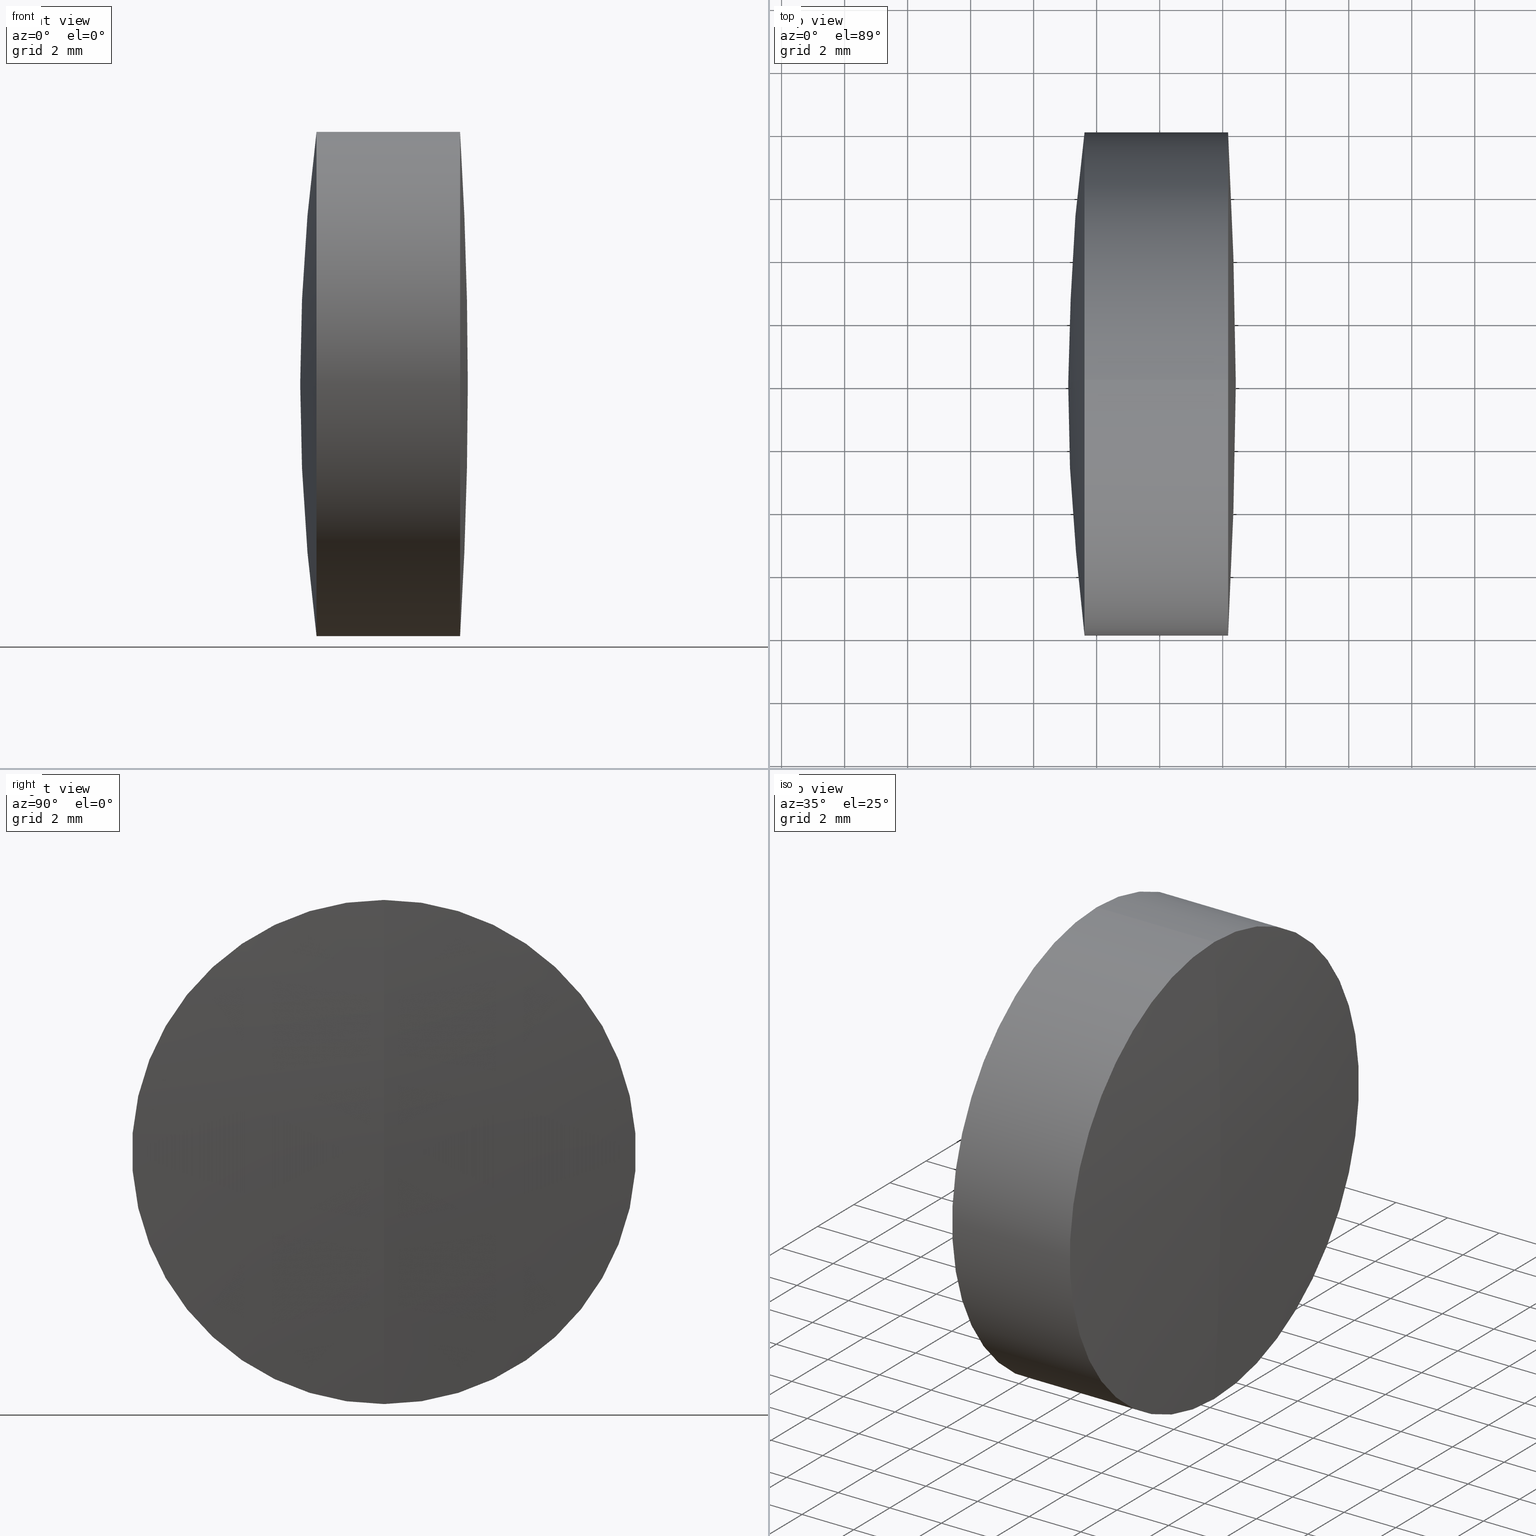
[diagram: canonical four-view strip — front | top / right | iso, engineering-drawing reading convention]
A machine part, canonical four-view strip (front | top / right | iso — engineering-drawing reading convention). The complete STEP part file that produces these views, byte-faithful:
ISO-10303-21;
HEADER;
FILE_DESCRIPTION (( 'STEP AP214' ),
    '1' );
FILE_NAME ('145035.STEP',
    '2019-05-11T06:52:00',
    ( 'user' ),
    ( '΢���й�' ),
    'SwSTEP 2.0',
    'SolidWorks 2016',
    '' );
FILE_SCHEMA (( 'AUTOMOTIVE_DESIGN' ));
ENDSEC;

DATA;
#1 = CYLINDRICAL_SURFACE ( 'NONE', #87, 8.000000000000000000 ) ;
#2 = EDGE_LOOP ( 'NONE', ( #178, #187, #67 ) ) ;
#3 = ORIENTED_EDGE ( 'NONE', *, *, #163, .T. ) ;
#4 = CARTESIAN_POINT ( 'NONE',  ( -92.12472938404633300, 0.0000000000000000000, 0.0000000000000000000 ) ) ;
#5 = EDGE_CURVE ( 'NONE', #121, #271, #224, .T. ) ;
#6 =( NAMED_UNIT ( * ) SI_UNIT ( $, .STERADIAN. ) SOLID_ANGLE_UNIT ( ) );
#7 = EDGE_LOOP ( 'NONE', ( #101, #62, #22 ) ) ;
#8 = ORIENTED_EDGE ( 'NONE', *, *, #275, .T. ) ;
#9 = CARTESIAN_POINT ( 'NONE',  ( 38.17090631032368700, 9.797174393178837500E-016, -8.000000000000007100 ) ) ;
#10 = CARTESIAN_POINT ( 'NONE',  ( 95.05027061595363600, 0.0000000000000000000, 3.037462302040094600E-017 ) ) ;
#11 = ADVANCED_FACE ( 'NONE', ( #230 ), #252, .T. ) ;
#12 = STYLED_ITEM ( 'NONE', ( #237 ), #108 ) ;
#13 = DIRECTION ( 'NONE',  ( 0.0000000000000000000, 1.000000000000000000, 0.0000000000000000000 ) ) ;
#14 = EDGE_LOOP ( 'NONE', ( #81, #241, #216, #170 ) ) ;
#15 = ORIENTED_EDGE ( 'NONE', *, *, #338, .T. ) ;
#16 = FILL_AREA_STYLE_COLOUR ( '', #285 ) ;
#17 = DIRECTION ( 'NONE',  ( -1.000000000000000000, -0.0000000000000000000, -0.0000000000000000000 ) ) ;
#18 = DIRECTION ( 'NONE',  ( 0.0000000000000000000, 0.0000000000000000000, -1.000000000000000000 ) ) ;
#19 = ADVANCED_FACE ( 'NONE', ( #206 ), #235, .F. ) ;
#20 = CARTESIAN_POINT ( 'NONE',  ( -3.994729384046351100, 0.0000000000000000000, 1.797088451517447400E-015 ) ) ;
#21 = DIRECTION ( 'NONE',  ( 0.0000000000000000000, 0.0000000000000000000, 1.000000000000000000 ) ) ;
#22 = ORIENTED_EDGE ( 'NONE', *, *, #232, .F. ) ;
#23 = ORIENTED_EDGE ( 'NONE', *, *, #144, .T. ) ;
#24 = STYLED_ITEM ( 'NONE', ( #47 ), #191 ) ;
#25 = PRESENTATION_LAYER_ASSIGNMENT (  '', '', ( #146 ) ) ;
#26 = DIRECTION ( 'NONE',  ( 0.0000000000000000000, 1.000000000000000000, -0.0000000000000000000 ) ) ;
#27 = VERTEX_POINT ( 'NONE', #344 ) ;
#28 = DIRECTION ( 'NONE',  ( -0.0000000000000000000, 1.000000000000000000, 1.224646799147353200E-016 ) ) ;
#29 = EDGE_CURVE ( 'NONE', #156, #332, #258, .T. ) ;
#30 = AXIS2_PLACEMENT_3D ( 'NONE', #112, #266, #114 ) ;
#31 = AXIS2_PLACEMENT_3D ( 'NONE', #280, #193, #289 ) ;
#32 = DIRECTION ( 'NONE',  ( -1.000000000000000000, -0.0000000000000000000, -0.0000000000000000000 ) ) ;
#33 = PRODUCT_DEFINITION ( 'δ֪', '', #288, #199 ) ;
#34 = ORIENTED_EDGE ( 'NONE', *, *, #310, .T. ) ;
#35 = SURFACE_STYLE_FILL_AREA ( #317 ) ;
#36 = VERTEX_POINT ( 'NONE', #119 ) ;
#37 = DIRECTION ( 'NONE',  ( 0.0000000000000000000, 0.0000000000000000000, 1.000000000000000000 ) ) ;
#38 = DIRECTION ( 'NONE',  ( 0.0000000000000000000, 0.0000000000000000000, 1.000000000000000000 ) ) ;
#39 = ORIENTED_EDGE ( 'NONE', *, *, #342, .T. ) ;
#40 = EDGE_CURVE ( 'NONE', #102, #36, #345, .T. ) ;
#41 = VERTEX_POINT ( 'NONE', #341 ) ;
#42 = AXIS2_PLACEMENT_3D ( 'NONE', #198, #279, #37 ) ;
#43 = FILL_AREA_STYLE ('',( #249 ) ) ;
#44 = EDGE_LOOP ( 'NONE', ( #165, #73, #312 ) ) ;
#45 = ADVANCED_FACE ( 'NONE', ( #231 ), #245, .T. ) ;
#46 = DIRECTION ( 'NONE',  ( 0.0000000000000000000, 0.0000000000000000000, 1.000000000000000000 ) ) ;
#47 = PRESENTATION_STYLE_ASSIGNMENT (( #307 ) ) ;
#48 = PRESENTATION_LAYER_ASSIGNMENT (  '', '', ( #24 ) ) ;
#49 = VECTOR ( 'NONE', #137, 1000.000000000000000 ) ;
#50 = ADVANCED_FACE ( 'NONE', ( #336 ), #315, .F. ) ;
#51 = EDGE_LOOP ( 'NONE', ( #184, #277, #15, #150 ) ) ;
#52 = DIRECTION ( 'NONE',  ( 0.0000000000000000000, 0.0000000000000000000, 1.000000000000000000 ) ) ;
#53 = DIRECTION ( 'NONE',  ( 0.0000000000000000000, 0.0000000000000000000, 1.000000000000000000 ) ) ;
#54 = CIRCLE ( 'NONE', #220, 130.5410000000000000 ) ;
#55 = DIRECTION ( 'NONE',  ( 0.0000000000000000000, 0.0000000000000000000, 1.000000000000000000 ) ) ;
#56 = ORIENTED_EDGE ( 'NONE', *, *, #5, .T. ) ;
#57 = AXIS2_PLACEMENT_3D ( 'NONE', #79, #17, #331 ) ;
#58 = ADVANCED_FACE ( 'NONE', ( #254 ), #117, .T. ) ;
#59 = LINE ( 'NONE', #98, #291 ) ;
#60 = EDGE_CURVE ( 'NONE', #86, #41, #113, .T. ) ;
#61 = ORIENTED_EDGE ( 'NONE', *, *, #228, .T. ) ;
#62 = ORIENTED_EDGE ( 'NONE', *, *, #40, .T. ) ;
#63 = MANIFOLD_SOLID_BREP ( '��ת1', #272 ) ;
#64 = VECTOR ( 'NONE', #324, 1000.000000000000000 ) ;
#65 = MECHANICAL_DESIGN_GEOMETRIC_PRESENTATION_REPRESENTATION (  '', ( #24 ), #244 ) ;
#66 = ORIENTED_EDGE ( 'NONE', *, *, #104, .T. ) ;
#67 = ORIENTED_EDGE ( 'NONE', *, *, #60, .T. ) ;
#68 = SURFACE_STYLE_USAGE ( .BOTH. , #281 ) ;
#69 = UNCERTAINTY_MEASURE_WITH_UNIT (LENGTH_MEASURE( 1.000000000000000100E-005 ), #70, 'distance_accuracy_value', 'NONE');
#70 =( LENGTH_UNIT ( ) NAMED_UNIT ( * ) SI_UNIT ( .MILLI., .METRE. ) );
#71 = FACE_OUTER_BOUND ( 'NONE', #92, .T. ) ;
#72 = CARTESIAN_POINT ( 'NONE',  ( -9.702612178336682500, 0.0000000000000000000, 0.0000000000000000000 ) ) ;
#73 = ORIENTED_EDGE ( 'NONE', *, *, #139, .T. ) ;
#74 = EDGE_LOOP ( 'NONE', ( #240, #56, #120 ) ) ;
#75 = CARTESIAN_POINT ( 'NONE',  ( 35.61649277584162100, 0.0000000000000000000, 8.000000000000000000 ) ) ;
#76 = DIRECTION ( 'NONE',  ( 0.0000000000000000000, -1.000000000000000000, 0.0000000000000000000 ) ) ;
#77 = CIRCLE ( 'NONE', #229, 40.41100000000000100 ) ;
#78 = CIRCLE ( 'NONE', #322, 40.41100000000000100 ) ;
#79 = CARTESIAN_POINT ( 'NONE',  ( -0.5519199926577972300, 0.0000000000000000000, 0.0000000000000000000 ) ) ;
#80 = CARTESIAN_POINT ( 'NONE',  ( -0.5519199926577972300, 0.0000000000000000000, 8.000000000000010700 ) ) ;
#81 = ORIENTED_EDGE ( 'NONE', *, *, #275, .F. ) ;
#82 = EDGE_LOOP ( 'NONE', ( #97, #34, #186 ) ) ;
#83 = AXIS2_PLACEMENT_3D ( 'NONE', #209, #185, #142 ) ;
#84 = APPLICATION_PROTOCOL_DEFINITION ( 'draft international standard', 'automotive_design', 1998, #111 ) ;
#85 = DIRECTION ( 'NONE',  ( -1.000000000000000000, -0.0000000000000000000, -0.0000000000000000000 ) ) ;
#86 = VERTEX_POINT ( 'NONE', #174 ) ;
#87 = AXIS2_PLACEMENT_3D ( 'NONE', #239, #243, #100 ) ;
#88 = AXIS2_PLACEMENT_3D ( 'NONE', #10, #286, #293 ) ;
#89 = DIRECTION ( 'NONE',  ( 0.0000000000000000000, -1.000000000000000000, 0.0000000000000000000 ) ) ;
#90 = CIRCLE ( 'NONE', #42, 8.000000000000000000 ) ;
#91 = VERTEX_POINT ( 'NONE', #329 ) ;
#92 = EDGE_LOOP ( 'NONE', ( #109, #164, #141 ) ) ;
#93 = CARTESIAN_POINT ( 'NONE',  ( 33.61495409524220400, -9.797174393178819700E-016, 7.999999999999992900 ) ) ;
#94 = AXIS2_PLACEMENT_3D ( 'NONE', #304, #327, #179 ) ;
#95 = ORIENTED_EDGE ( 'NONE', *, *, #310, .F. ) ;
#96 = DIRECTION ( 'NONE',  ( 0.0000000000000000000, 1.224646799147353200E-016, -1.000000000000000000 ) ) ;
#97 = ORIENTED_EDGE ( 'NONE', *, *, #342, .F. ) ;
#98 = CARTESIAN_POINT ( 'NONE',  ( -9.702612178336682500, 9.797174393178825700E-016, -8.000000000000000000 ) ) ;
#99 = MECHANICAL_DESIGN_GEOMETRIC_PRESENTATION_REPRESENTATION (  '', ( #12 ), #343 ) ;
#100 = DIRECTION ( 'NONE',  ( 0.0000000000000000000, 0.0000000000000000000, 1.000000000000000000 ) ) ;
#101 = ORIENTED_EDGE ( 'NONE', *, *, #257, .T. ) ;
#102 = VERTEX_POINT ( 'NONE', #93 ) ;
#103 = DIRECTION ( 'NONE',  ( 0.0000000000000000000, 0.0000000000000000000, 1.000000000000000000 ) ) ;
#104 = EDGE_CURVE ( 'NONE', #247, #271, #130, .T. ) ;
#105 = SURFACE_STYLE_FILL_AREA ( #256 ) ;
#106 = DIRECTION ( 'NONE',  ( 0.0000000000000000000, 0.0000000000000000000, -1.000000000000000000 ) ) ;
#107 = CARTESIAN_POINT ( 'NONE',  ( 35.61649277584162100, 0.0000000000000000000, 0.0000000000000000000 ) ) ;
#108 = MANIFOLD_SOLID_BREP ( '��ת3', #325 ) ;
#109 = ORIENTED_EDGE ( 'NONE', *, *, #5, .F. ) ;
#110 =( LENGTH_UNIT ( ) NAMED_UNIT ( * ) SI_UNIT ( .MILLI., .METRE. ) );
#111 = APPLICATION_CONTEXT ( 'automotive_design' ) ;
#112 = CARTESIAN_POINT ( 'NONE',  ( -3.994729384046351100, 0.0000000000000000000, 1.797088451517447400E-015 ) ) ;
#113 = CIRCLE ( 'NONE', #115, 8.000000000000012400 ) ;
#114 = DIRECTION ( 'NONE',  ( 0.0000000000000000000, 0.0000000000000000000, 1.000000000000000000 ) ) ;
#115 = AXIS2_PLACEMENT_3D ( 'NONE', #127, #32, #55 ) ;
#116 =( NAMED_UNIT ( * ) PLANE_ANGLE_UNIT ( ) SI_UNIT ( $, .RADIAN. ) );
#117 = SPHERICAL_SURFACE ( 'NONE', #169, 61.95399999999999400 ) ;
#118 = EDGE_CURVE ( 'NONE', #271, #247, #323, .T. ) ;
#119 = CARTESIAN_POINT ( 'NONE',  ( 33.09627061595364900, 0.0000000000000000000, -3.763213766698355200E-015 ) ) ;
#120 = ORIENTED_EDGE ( 'NONE', *, *, #104, .F. ) ;
#121 = VERTEX_POINT ( 'NONE', #180 ) ;
#122 = CARTESIAN_POINT ( 'NONE',  ( 35.61649277584162100, 0.0000000000000000000, 0.0000000000000000000 ) ) ;
#123 = EDGE_LOOP ( 'NONE', ( #296, #195, #61 ) ) ;
#124 = AXIS2_PLACEMENT_3D ( 'NONE', #203, #334, #21 ) ;
#125 = LINE ( 'NONE', #176, #49 ) ;
#126 = AXIS2_PLACEMENT_3D ( 'NONE', #313, #255, #53 ) ;
#127 = CARTESIAN_POINT ( 'NONE',  ( 35.61649277584162100, 0.0000000000000000000, 0.0000000000000000000 ) ) ;
#128 = DIRECTION ( 'NONE',  ( 0.0000000000000000000, 0.0000000000000000000, 1.000000000000000000 ) ) ;
#129 = AXIS2_PLACEMENT_3D ( 'NONE', #4, #13, #128 ) ;
#130 = CIRCLE ( 'NONE', #160, 8.000000000000007100 ) ;
#131 = SURFACE_STYLE_USAGE ( .BOTH. , #306 ) ;
#132 =( NAMED_UNIT ( * ) PLANE_ANGLE_UNIT ( ) SI_UNIT ( $, .RADIAN. ) );
#133 = LINE ( 'NONE', #253, #189 ) ;
#134 = DIRECTION ( 'NONE',  ( 0.0000000000000000000, -1.224646799147353200E-016, 1.000000000000000000 ) ) ;
#135 = EDGE_LOOP ( 'NONE', ( #95, #39, #173 ) ) ;
#136 = DIRECTION ( 'NONE',  ( -0.0000000000000000000, 1.000000000000000000, 1.224646799147353200E-016 ) ) ;
#137 = DIRECTION ( 'NONE',  ( -1.000000000000000000, -0.0000000000000000000, -0.0000000000000000000 ) ) ;
#138 = ADVANCED_FACE ( 'NONE', ( #238 ), #1, .T. ) ;
#139 = EDGE_CURVE ( 'NONE', #102, #223, #90, .T. ) ;
#140 = FACE_OUTER_BOUND ( 'NONE', #14, .T. ) ;
#141 = ORIENTED_EDGE ( 'NONE', *, *, #118, .F. ) ;
#142 = DIRECTION ( 'NONE',  ( 0.0000000000000000000, 0.0000000000000000000, 1.000000000000000000 ) ) ;
#143 = CIRCLE ( 'NONE', #259, 61.95399999999999400 ) ;
#144 = EDGE_CURVE ( 'NONE', #156, #223, #59, .T. ) ;
#145 = UNCERTAINTY_MEASURE_WITH_UNIT (LENGTH_MEASURE( 1.000000000000000100E-005 ), #110, 'distance_accuracy_value', 'NONE');
#146 = STYLED_ITEM ( 'NONE', ( #219 ), #63 ) ;
#147 = CIRCLE ( 'NONE', #126, 8.000000000000000000 ) ;
#148 = CYLINDRICAL_SURFACE ( 'NONE', #287, 8.000000000000010700 ) ;
#149 = FACE_OUTER_BOUND ( 'NONE', #74, .T. ) ;
#150 = ORIENTED_EDGE ( 'NONE', *, *, #257, .F. ) ;
#151 = EDGE_LOOP ( 'NONE', ( #66, #8, #215, #201 ) ) ;
#152 = AXIS2_PLACEMENT_3D ( 'NONE', #155, #299, #318 ) ;
#153 =( NAMED_UNIT ( * ) SI_UNIT ( $, .STERADIAN. ) SOLID_ANGLE_UNIT ( ) );
#154 = SURFACE_STYLE_FILL_AREA ( #43 ) ;
#155 = CARTESIAN_POINT ( 'NONE',  ( 38.17090631032368700, 0.0000000000000000000, 0.0000000000000000000 ) ) ;
#156 = VERTEX_POINT ( 'NONE', #346 ) ;
#157 = CARTESIAN_POINT ( 'NONE',  ( 38.17090631032368700, 0.0000000000000000000, 8.000000000000007100 ) ) ;
#158 = DIRECTION ( 'NONE',  ( 0.0000000000000000000, 0.0000000000000000000, 1.000000000000000000 ) ) ;
#159 = SPHERICAL_SURFACE ( 'NONE', #129, 130.5410000000000000 ) ;
#160 = AXIS2_PLACEMENT_3D ( 'NONE', #260, #242, #38 ) ;
#161 = DIRECTION ( 'NONE',  ( -0.0000000000000000000, -1.000000000000000000, -0.0000000000000000000 ) ) ;
#162 = DIRECTION ( 'NONE',  ( -1.000000000000000000, -0.0000000000000000000, -0.0000000000000000000 ) ) ;
#163 = EDGE_CURVE ( 'NONE', #332, #156, #147, .T. ) ;
#164 = ORIENTED_EDGE ( 'NONE', *, *, #282, .T. ) ;
#165 = ORIENTED_EDGE ( 'NONE', *, *, #40, .F. ) ;
#166 = PRODUCT_CONTEXT ( 'NONE', #111, 'mechanical' ) ;
#167 = PRODUCT_DEFINITION_SHAPE ( 'NONE', 'NONE',  #33 ) ;
#168 = DIRECTION ( 'NONE',  ( 0.0000000000000000000, 1.000000000000000000, 0.0000000000000000000 ) ) ;
#169 = AXIS2_PLACEMENT_3D ( 'NONE', #234, #161, #106 ) ;
#170 = ORIENTED_EDGE ( 'NONE', *, *, #228, .F. ) ;
#171 = ADVANCED_FACE ( 'NONE', ( #149 ), #159, .T. ) ;
#172 =( LENGTH_UNIT ( ) NAMED_UNIT ( * ) SI_UNIT ( .MILLI., .METRE. ) );
#173 = ORIENTED_EDGE ( 'NONE', *, *, #29, .F. ) ;
#174 = CARTESIAN_POINT ( 'NONE',  ( 35.61649277584162100, 0.0000000000000000000, 8.000000000000014200 ) ) ;
#175 = DIRECTION ( 'NONE',  ( 0.0000000000000000000, -1.224646799147353200E-016, 1.000000000000000000 ) ) ;
#176 = CARTESIAN_POINT ( 'NONE',  ( -0.5519199926577972300, 9.797174393178839500E-016, -8.000000000000010700 ) ) ;
#177 = DIRECTION ( 'NONE',  ( 0.0000000000000000000, 0.0000000000000000000, 1.000000000000000000 ) ) ;
#178 = ORIENTED_EDGE ( 'NONE', *, *, #188, .F. ) ;
#179 = DIRECTION ( 'NONE',  ( 0.0000000000000000000, 0.0000000000000000000, 1.000000000000000000 ) ) ;
#180 = CARTESIAN_POINT ( 'NONE',  ( 38.41627061595365000, 0.0000000000000000000, 7.993330890374731700E-015 ) ) ;
#181 = ADVANCED_FACE ( 'NONE', ( #227 ), #337, .T. ) ;
#182 = PRESENTATION_LAYER_ASSIGNMENT (  '', '', ( #12 ) ) ;
#183 = ORIENTED_EDGE ( 'NONE', *, *, #338, .F. ) ;
#184 = ORIENTED_EDGE ( 'NONE', *, *, #144, .F. ) ;
#185 = DIRECTION ( 'NONE',  ( -1.000000000000000000, -0.0000000000000000000, -0.0000000000000000000 ) ) ;
#186 = ORIENTED_EDGE ( 'NONE', *, *, #163, .F. ) ;
#187 = ORIENTED_EDGE ( 'NONE', *, *, #308, .T. ) ;
#188 = EDGE_CURVE ( 'NONE', #27, #41, #78, .T. ) ;
#189 = VECTOR ( 'NONE', #273, 1000.000000000000000 ) ;
#190 = CYLINDRICAL_SURFACE ( 'NONE', #192, 8.000000000000000000 ) ;
#191 = ADVANCED_BREP_SHAPE_REPRESENTATION ( '145035', ( #63, #108, #301 ), #264 ) ;
#192 = AXIS2_PLACEMENT_3D ( 'NONE', #72, #274, #305 ) ;
#193 = DIRECTION ( 'NONE',  ( 0.0000000000000000000, 1.000000000000000000, 0.0000000000000000000 ) ) ;
#194 = DIRECTION ( 'NONE',  ( -0.0000000000000000000, 1.000000000000000000, 1.224646799147353200E-016 ) ) ;
#195 = ORIENTED_EDGE ( 'NONE', *, *, #188, .T. ) ;
#196 = EDGE_CURVE ( 'NONE', #247, #86, #212, .T. ) ;
#197 = FACE_OUTER_BOUND ( 'NONE', #44, .T. ) ;
#198 = CARTESIAN_POINT ( 'NONE',  ( 33.61495409524220400, 0.0000000000000000000, 0.0000000000000000000 ) ) ;
#199 = PRODUCT_DEFINITION_CONTEXT ( 'detailed design', #217, 'design' ) ;
#200 = AXIS2_PLACEMENT_3D ( 'NONE', #208, #168, #177 ) ;
#201 = ORIENTED_EDGE ( 'NONE', *, *, #196, .F. ) ;
#202 = AXIS2_PLACEMENT_3D ( 'NONE', #107, #85, #52 ) ;
#203 = CARTESIAN_POINT ( 'NONE',  ( -92.12472938404633300, 0.0000000000000000000, 0.0000000000000000000 ) ) ;
#204 = EDGE_LOOP ( 'NONE', ( #3, #23, #320, #183 ) ) ;
#205 = CARTESIAN_POINT ( 'NONE',  ( -0.5519199926577972300, 0.0000000000000000000, 0.0000000000000000000 ) ) ;
#206 = FACE_OUTER_BOUND ( 'NONE', #2, .T. ) ;
#207 = MECHANICAL_DESIGN_GEOMETRIC_PRESENTATION_REPRESENTATION (  '', ( #146 ), #270 ) ;
#208 = CARTESIAN_POINT ( 'NONE',  ( -3.994729384046351100, 0.0000000000000000000, 1.797088451517447400E-015 ) ) ;
#209 = CARTESIAN_POINT ( 'NONE',  ( 33.61495409524220400, 0.0000000000000000000, 0.0000000000000000000 ) ) ;
#210 = CARTESIAN_POINT ( 'NONE',  ( 95.05027061595363600, 0.0000000000000000000, 3.037462302040094600E-017 ) ) ;
#211 = SHAPE_DEFINITION_REPRESENTATION ( #167, #191 ) ;
#212 = LINE ( 'NONE', #80, #64 ) ;
#213 = CARTESIAN_POINT ( 'NONE',  ( 95.05027061595363600, 0.0000000000000000000, 3.037462302040094600E-017 ) ) ;
#214 = CARTESIAN_POINT ( 'NONE',  ( -3.994729384046351100, 0.0000000000000000000, 1.797088451517447400E-015 ) ) ;
#215 = ORIENTED_EDGE ( 'NONE', *, *, #60, .F. ) ;
#216 = ORIENTED_EDGE ( 'NONE', *, *, #196, .T. ) ;
#217 = APPLICATION_CONTEXT ( 'automotive_design' ) ;
#218 = AXIS2_PLACEMENT_3D ( 'NONE', #213, #298, #96 ) ;
#219 = PRESENTATION_STYLE_ASSIGNMENT (( #131 ) ) ;
#220 = AXIS2_PLACEMENT_3D ( 'NONE', #246, #89, #18 ) ;
#221 = CARTESIAN_POINT ( 'NONE',  ( -3.994729384046351100, 0.0000000000000000000, 1.797088451517447400E-015 ) ) ;
#222 = DIRECTION ( 'NONE',  ( 0.0000000000000000000, 0.0000000000000000000, -1.000000000000000000 ) ) ;
#223 = VERTEX_POINT ( 'NONE', #294 ) ;
#224 = CIRCLE ( 'NONE', #340, 130.5410000000000000 ) ;
#225 =( NAMED_UNIT ( * ) PLANE_ANGLE_UNIT ( ) SI_UNIT ( $, .RADIAN. ) );
#226 = DIRECTION ( 'NONE',  ( 0.0000000000000000000, -1.224646799147353200E-016, 1.000000000000000000 ) ) ;
#227 = FACE_OUTER_BOUND ( 'NONE', #82, .T. ) ;
#228 = EDGE_CURVE ( 'NONE', #41, #86, #330, .T. ) ;
#229 = AXIS2_PLACEMENT_3D ( 'NONE', #221, #335, #222 ) ;
#230 = FACE_OUTER_BOUND ( 'NONE', #151, .T. ) ;
#231 = FACE_OUTER_BOUND ( 'NONE', #135, .T. ) ;
#232 = EDGE_CURVE ( 'NONE', #223, #36, #143, .T. ) ;
#233 = COLOUR_RGB ( '',1.000000000000000000, 1.000000000000000000, 1.000000000000000000 ) ;
#234 = CARTESIAN_POINT ( 'NONE',  ( 95.05027061595363600, 0.0000000000000000000, 3.037462302040094600E-017 ) ) ;
#235 = SPHERICAL_SURFACE ( 'NONE', #94, 40.41100000000000100 ) ;
#236 = DIRECTION ( 'NONE',  ( -1.000000000000000000, -0.0000000000000000000, -0.0000000000000000000 ) ) ;
#237 = PRESENTATION_STYLE_ASSIGNMENT (( #68 ) ) ;
#238 = FACE_OUTER_BOUND ( 'NONE', #204, .T. ) ;
#239 = CARTESIAN_POINT ( 'NONE',  ( -9.702612178336682500, 0.0000000000000000000, 0.0000000000000000000 ) ) ;
#240 = ORIENTED_EDGE ( 'NONE', *, *, #282, .F. ) ;
#241 = ORIENTED_EDGE ( 'NONE', *, *, #118, .T. ) ;
#242 = DIRECTION ( 'NONE',  ( -1.000000000000000000, -0.0000000000000000000, -0.0000000000000000000 ) ) ;
#243 = DIRECTION ( 'NONE',  ( -1.000000000000000000, -0.0000000000000000000, -0.0000000000000000000 ) ) ;
#244 =( GEOMETRIC_REPRESENTATION_CONTEXT ( 3 ) GLOBAL_UNCERTAINTY_ASSIGNED_CONTEXT ( ( #145 ) ) GLOBAL_UNIT_ASSIGNED_CONTEXT ( ( #110, #132, #262 ) ) REPRESENTATION_CONTEXT ( 'NONE', 'WORKASPACE' ) );
#245 = SPHERICAL_SURFACE ( 'NONE', #31, 40.41100000000000100 ) ;
#246 = CARTESIAN_POINT ( 'NONE',  ( -92.12472938404633300, 0.0000000000000000000, 0.0000000000000000000 ) ) ;
#247 = VERTEX_POINT ( 'NONE', #157 ) ;
#248 = ADVANCED_FACE ( 'NONE', ( #197 ), #283, .T. ) ;
#249 = FILL_AREA_STYLE_COLOUR ( '', #233 ) ;
#250 = ADVANCED_FACE ( 'NONE', ( #319 ), #190, .T. ) ;
#251 = CARTESIAN_POINT ( 'NONE',  ( 0.0000000000000000000, 0.0000000000000000000, 0.0000000000000000000 ) ) ;
#252 = CYLINDRICAL_SURFACE ( 'NONE', #57, 8.000000000000010700 ) ;
#253 = CARTESIAN_POINT ( 'NONE',  ( -9.702612178336682500, 0.0000000000000000000, 8.000000000000000000 ) ) ;
#254 = FACE_OUTER_BOUND ( 'NONE', #7, .T. ) ;
#255 = DIRECTION ( 'NONE',  ( -1.000000000000000000, -0.0000000000000000000, -0.0000000000000000000 ) ) ;
#256 = FILL_AREA_STYLE ('',( #302 ) ) ;
#257 = EDGE_CURVE ( 'NONE', #223, #102, #267, .T. ) ;
#258 = CIRCLE ( 'NONE', #300, 8.000000000000000000 ) ;
#259 = AXIS2_PLACEMENT_3D ( 'NONE', #210, #26, #158 ) ;
#260 = CARTESIAN_POINT ( 'NONE',  ( 38.17090631032368700, 0.0000000000000000000, 0.0000000000000000000 ) ) ;
#261 = DIRECTION ( 'NONE',  ( 1.000000000000000000, 0.0000000000000000000, 0.0000000000000000000 ) ) ;
#262 =( NAMED_UNIT ( * ) SI_UNIT ( $, .STERADIAN. ) SOLID_ANGLE_UNIT ( ) );
#263 = SURFACE_SIDE_STYLE ('',( #154 ) ) ;
#264 =( GEOMETRIC_REPRESENTATION_CONTEXT ( 3 ) GLOBAL_UNCERTAINTY_ASSIGNED_CONTEXT ( ( #69 ) ) GLOBAL_UNIT_ASSIGNED_CONTEXT ( ( #70, #225, #309 ) ) REPRESENTATION_CONTEXT ( 'NONE', 'WORKASPACE' ) );
#265 = CARTESIAN_POINT ( 'NONE',  ( -92.12472938404633300, 0.0000000000000000000, 0.0000000000000000000 ) ) ;
#266 = DIRECTION ( 'NONE',  ( 0.0000000000000000000, 1.000000000000000000, 0.0000000000000000000 ) ) ;
#267 = CIRCLE ( 'NONE', #83, 8.000000000000000000 ) ;
#268 = PRODUCT ( '145035', '145035', '', ( #166 ) ) ;
#269 = AXIS2_PLACEMENT_3D ( 'NONE', #328, #76, #326 ) ;
#270 =( GEOMETRIC_REPRESENTATION_CONTEXT ( 3 ) GLOBAL_UNCERTAINTY_ASSIGNED_CONTEXT ( ( #303 ) ) GLOBAL_UNIT_ASSIGNED_CONTEXT ( ( #292, #116, #6 ) ) REPRESENTATION_CONTEXT ( 'NONE', 'WORKASPACE' ) );
#271 = VERTEX_POINT ( 'NONE', #9 ) ;
#272 = CLOSED_SHELL ( 'NONE', ( #181, #138, #58, #248, #250, #45 ) ) ;
#273 = DIRECTION ( 'NONE',  ( -1.000000000000000000, -0.0000000000000000000, -0.0000000000000000000 ) ) ;
#274 = DIRECTION ( 'NONE',  ( -1.000000000000000000, -0.0000000000000000000, -0.0000000000000000000 ) ) ;
#275 = EDGE_CURVE ( 'NONE', #271, #41, #125, .T. ) ;
#276 = CIRCLE ( 'NONE', #269, 40.41100000000000100 ) ;
#277 = ORIENTED_EDGE ( 'NONE', *, *, #29, .T. ) ;
#278 = COLOUR_RGB ( '',1.000000000000000000, 1.000000000000000000, 1.000000000000000000 ) ;
#279 = DIRECTION ( 'NONE',  ( -1.000000000000000000, -0.0000000000000000000, -0.0000000000000000000 ) ) ;
#280 = CARTESIAN_POINT ( 'NONE',  ( -3.994729384046351100, 0.0000000000000000000, 1.797088451517447400E-015 ) ) ;
#281 = SURFACE_SIDE_STYLE ('',( #35 ) ) ;
#282 = EDGE_CURVE ( 'NONE', #121, #247, #54, .T. ) ;
#283 = SPHERICAL_SURFACE ( 'NONE', #88, 61.95399999999999400 ) ;
#284 = AXIS2_PLACEMENT_3D ( 'NONE', #214, #136, #226 ) ;
#285 = COLOUR_RGB ( '',1.000000000000000000, 1.000000000000000000, 1.000000000000000000 ) ;
#286 = DIRECTION ( 'NONE',  ( -0.0000000000000000000, -1.000000000000000000, -0.0000000000000000000 ) ) ;
#287 = AXIS2_PLACEMENT_3D ( 'NONE', #205, #162, #103 ) ;
#288 = PRODUCT_DEFINITION_FORMATION_WITH_SPECIFIED_SOURCE ( '�κ�', '', #268, .NOT_KNOWN. ) ;
#289 = DIRECTION ( 'NONE',  ( 0.0000000000000000000, 0.0000000000000000000, 1.000000000000000000 ) ) ;
#290 = SPHERICAL_SURFACE ( 'NONE', #124, 130.5410000000000000 ) ;
#291 = VECTOR ( 'NONE', #236, 1000.000000000000000 ) ;
#292 =( LENGTH_UNIT ( ) NAMED_UNIT ( * ) SI_UNIT ( .MILLI., .METRE. ) );
#293 = DIRECTION ( 'NONE',  ( 0.0000000000000000000, 0.0000000000000000000, -1.000000000000000000 ) ) ;
#294 = CARTESIAN_POINT ( 'NONE',  ( 33.61495409524220400, 0.0000000000000000000, -7.999999999999992900 ) ) ;
#295 = DIRECTION ( 'NONE',  ( 0.0000000000000000000, 0.0000000000000000000, 1.000000000000000000 ) ) ;
#296 = ORIENTED_EDGE ( 'NONE', *, *, #308, .F. ) ;
#297 = DIRECTION ( 'NONE',  ( -1.000000000000000000, -0.0000000000000000000, -0.0000000000000000000 ) ) ;
#298 = DIRECTION ( 'NONE',  ( 0.0000000000000000000, -1.000000000000000000, -1.224646799147353200E-016 ) ) ;
#299 = DIRECTION ( 'NONE',  ( -1.000000000000000000, -0.0000000000000000000, -0.0000000000000000000 ) ) ;
#300 = AXIS2_PLACEMENT_3D ( 'NONE', #122, #297, #46 ) ;
#301 = AXIS2_PLACEMENT_3D ( 'NONE', #251, #295, #261 ) ;
#302 = FILL_AREA_STYLE_COLOUR ( '', #278 ) ;
#303 = UNCERTAINTY_MEASURE_WITH_UNIT (LENGTH_MEASURE( 1.000000000000000100E-005 ), #292, 'distance_accuracy_value', 'NONE');
#304 = CARTESIAN_POINT ( 'NONE',  ( -3.994729384046351100, 0.0000000000000000000, 1.797088451517447400E-015 ) ) ;
#305 = DIRECTION ( 'NONE',  ( 0.0000000000000000000, 0.0000000000000000000, 1.000000000000000000 ) ) ;
#306 = SURFACE_SIDE_STYLE ('',( #105 ) ) ;
#307 = SURFACE_STYLE_USAGE ( .BOTH. , #263 ) ;
#308 = EDGE_CURVE ( 'NONE', #27, #86, #276, .T. ) ;
#309 =( NAMED_UNIT ( * ) SI_UNIT ( $, .STERADIAN. ) SOLID_ANGLE_UNIT ( ) );
#310 = EDGE_CURVE ( 'NONE', #91, #156, #314, .T. ) ;
#311 = APPLICATION_PROTOCOL_DEFINITION ( 'draft international standard', 'automotive_design', 1998, #217 ) ;
#312 = ORIENTED_EDGE ( 'NONE', *, *, #232, .T. ) ;
#313 = CARTESIAN_POINT ( 'NONE',  ( 35.61649277584162100, 0.0000000000000000000, 0.0000000000000000000 ) ) ;
#314 = CIRCLE ( 'NONE', #284, 40.41100000000000100 ) ;
#315 = SPHERICAL_SURFACE ( 'NONE', #200, 40.41100000000000100 ) ;
#316 = UNCERTAINTY_MEASURE_WITH_UNIT (LENGTH_MEASURE( 1.000000000000000100E-005 ), #172, 'distance_accuracy_value', 'NONE');
#317 = FILL_AREA_STYLE ('',( #16 ) ) ;
#318 = DIRECTION ( 'NONE',  ( 0.0000000000000000000, 0.0000000000000000000, 1.000000000000000000 ) ) ;
#319 = FACE_OUTER_BOUND ( 'NONE', #51, .T. ) ;
#320 = ORIENTED_EDGE ( 'NONE', *, *, #139, .F. ) ;
#321 =( NAMED_UNIT ( * ) PLANE_ANGLE_UNIT ( ) SI_UNIT ( $, .RADIAN. ) );
#322 = AXIS2_PLACEMENT_3D ( 'NONE', #20, #28, #175 ) ;
#323 = CIRCLE ( 'NONE', #152, 8.000000000000007100 ) ;
#324 = DIRECTION ( 'NONE',  ( -1.000000000000000000, -0.0000000000000000000, -0.0000000000000000000 ) ) ;
#325 = CLOSED_SHELL ( 'NONE', ( #171, #11, #50, #19, #333, #347 ) ) ;
#326 = DIRECTION ( 'NONE',  ( 0.0000000000000000000, 0.0000000000000000000, -1.000000000000000000 ) ) ;
#327 = DIRECTION ( 'NONE',  ( 0.0000000000000000000, 1.000000000000000000, 0.0000000000000000000 ) ) ;
#328 = CARTESIAN_POINT ( 'NONE',  ( -3.994729384046351100, 0.0000000000000000000, 1.797088451517447400E-015 ) ) ;
#329 = CARTESIAN_POINT ( 'NONE',  ( 36.41627061595365000, 0.0000000000000000000, 4.271548541534632700E-015 ) ) ;
#330 = CIRCLE ( 'NONE', #202, 8.000000000000012400 ) ;
#331 = DIRECTION ( 'NONE',  ( 0.0000000000000000000, 0.0000000000000000000, 1.000000000000000000 ) ) ;
#332 = VERTEX_POINT ( 'NONE', #75 ) ;
#333 = ADVANCED_FACE ( 'NONE', ( #140 ), #148, .T. ) ;
#334 = DIRECTION ( 'NONE',  ( 0.0000000000000000000, 1.000000000000000000, 0.0000000000000000000 ) ) ;
#335 = DIRECTION ( 'NONE',  ( 0.0000000000000000000, -1.000000000000000000, 0.0000000000000000000 ) ) ;
#336 = FACE_OUTER_BOUND ( 'NONE', #123, .T. ) ;
#337 = SPHERICAL_SURFACE ( 'NONE', #30, 40.41100000000000100 ) ;
#338 = EDGE_CURVE ( 'NONE', #332, #102, #133, .T. ) ;
#339 = PRODUCT_RELATED_PRODUCT_CATEGORY ( 'part', '', ( #268 ) ) ;
#340 = AXIS2_PLACEMENT_3D ( 'NONE', #265, #194, #134 ) ;
#341 = CARTESIAN_POINT ( 'NONE',  ( 35.61649277584162100, 9.797174393178843400E-016, -8.000000000000014200 ) ) ;
#342 = EDGE_CURVE ( 'NONE', #91, #332, #77, .T. ) ;
#343 =( GEOMETRIC_REPRESENTATION_CONTEXT ( 3 ) GLOBAL_UNCERTAINTY_ASSIGNED_CONTEXT ( ( #316 ) ) GLOBAL_UNIT_ASSIGNED_CONTEXT ( ( #172, #321, #153 ) ) REPRESENTATION_CONTEXT ( 'NONE', 'WORKASPACE' ) );
#344 = CARTESIAN_POINT ( 'NONE',  ( 36.41627061595365000, 0.0000000000000000000, 4.271548541534632700E-015 ) ) ;
#345 = CIRCLE ( 'NONE', #218, 61.95399999999999400 ) ;
#346 = CARTESIAN_POINT ( 'NONE',  ( 35.61649277584162100, 9.797174393178825700E-016, -8.000000000000000000 ) ) ;
#347 = ADVANCED_FACE ( 'NONE', ( #71 ), #290, .T. ) ;
ENDSEC;
END-ISO-10303-21;
